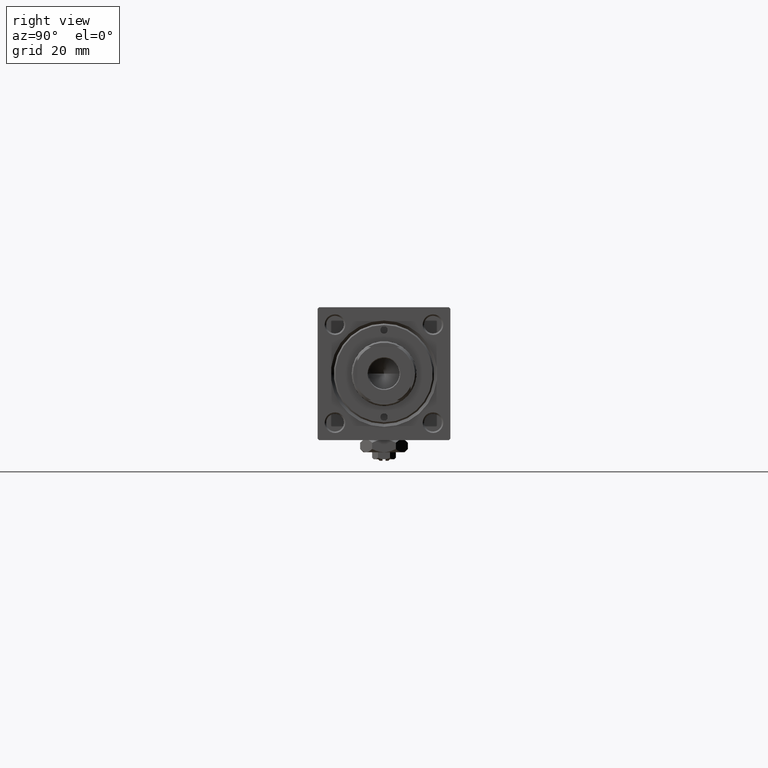
[diagram: clean part render]
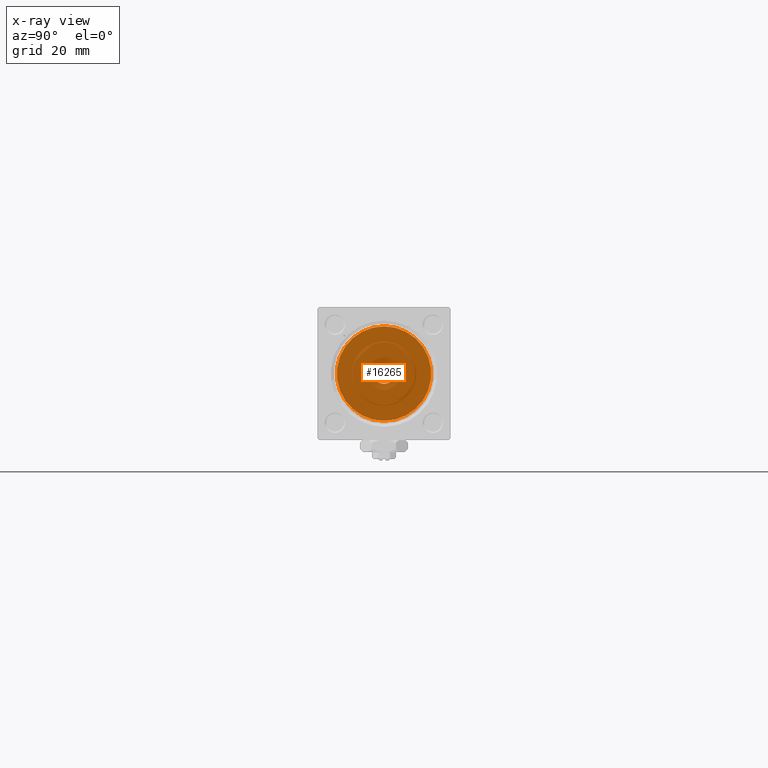
[diagram: x-ray — body ghosted, one internal face saturated and labeled with its STEP entity id]
A machine part, right view, then the same camera in x-ray: the body is ghosted and one INTERNAL B-rep face — a face not visible from any outside direction — is saturated and labeled: STEP entity #16265.
In plain terms, the highlighted planar face has unit normal (-1, 0, 0).
Its self-contained STEP definition (entity closure, byte-faithful):
#7 = DIRECTION ( 'NONE',  ( -1.000000000000000000, 0.000000000000000000, -0.000000000000000000 ) ) ;
#1093 = CIRCLE ( 'NONE', #31374, 3.500000000000000000 ) ;
#2374 = CARTESIAN_POINT ( 'NONE',  ( 25.00000000000000000, -2.602085213965210642E-15, 16.00000000000000000 ) ) ;
#4011 = AXIS2_PLACEMENT_3D ( 'NONE', #28978, #7, #11931 ) ;
#5215 = DIRECTION ( 'NONE',  ( -1.000000000000000000, 0.000000000000000000, -0.000000000000000000 ) ) ;
#8022 = ORIENTED_EDGE ( 'NONE', *, *, #21030, .T. ) ;
#9015 = DIRECTION ( 'NONE',  ( 0.000000000000000000, 0.000000000000000000, 1.000000000000000000 ) ) ;
#9909 = AXIS2_PLACEMENT_3D ( 'NONE', #34476, #5215, #9015 ) ;
#10006 = DIRECTION ( 'NONE',  ( 1.000000000000000000, 0.000000000000000000, 0.000000000000000000 ) ) ;
#11931 = DIRECTION ( 'NONE',  ( -0.000000000000000000, 0.000000000000000000, 1.000000000000000000 ) ) ;
#11955 = ORIENTED_EDGE ( 'NONE', *, *, #41041, .T. ) ;
#15994 = FACE_OUTER_BOUND ( 'NONE', #52033, .T. ) ;
#16265 = ADVANCED_FACE ( 'NONE', ( #31993, #15994 ), #37111, .F. ) ;
#16372 = VERTEX_POINT ( 'NONE', #49789 ) ;
#18639 = VERTEX_POINT ( 'NONE', #29258 ) ;
#21030 = EDGE_CURVE ( 'NONE', #52644, #42123, #45544, .T. ) ;
#24903 = CARTESIAN_POINT ( 'NONE',  ( 24.99999999999999289, 0.000000000000000000, 0.000000000000000000 ) ) ;
#26532 = DIRECTION ( 'NONE',  ( 0.000000000000000000, 0.000000000000000000, -1.000000000000000000 ) ) ;
#27988 = CARTESIAN_POINT ( 'NONE',  ( 25.00000000000000000, -2.602085213965210642E-15, 0.000000000000000000 ) ) ;
#28978 = CARTESIAN_POINT ( 'NONE',  ( 25.00000000000000000, 0.000000000000000000, 0.000000000000000000 ) ) ;
#29258 = CARTESIAN_POINT ( 'NONE',  ( 24.99999999999999289, 0.000000000000000000, 3.500000000000000000 ) ) ;
#31374 = AXIS2_PLACEMENT_3D ( 'NONE', #24903, #33565, #45726 ) ;
#31993 = FACE_BOUND ( 'NONE', #37575, .T. ) ;
#33255 = CIRCLE ( 'NONE', #9909, 3.500000000000000000 ) ;
#33565 = DIRECTION ( 'NONE',  ( -1.000000000000000000, 0.000000000000000000, -0.000000000000000000 ) ) ;
#34476 = CARTESIAN_POINT ( 'NONE',  ( 24.99999999999999289, 0.000000000000000000, 0.000000000000000000 ) ) ;
#36078 = ORIENTED_EDGE ( 'NONE', *, *, #47006, .T. ) ;
#37111 = PLANE ( 'NONE',  #4011 ) ;
#37251 = ORIENTED_EDGE ( 'NONE', *, *, #39680, .T. ) ;
#37575 = EDGE_LOOP ( 'NONE', ( #36078, #37251 ) ) ;
#39680 = EDGE_CURVE ( 'NONE', #16372, #18639, #1093, .T. ) ;
#40918 = CIRCLE ( 'NONE', #47800, 16.00000000000000000 ) ;
#41041 = EDGE_CURVE ( 'NONE', #42123, #52644, #40918, .T. ) ;
#42123 = VERTEX_POINT ( 'NONE', #49667 ) ;
#43294 = CARTESIAN_POINT ( 'NONE',  ( 25.00000000000000000, -2.602085213965210642E-15, 0.000000000000000000 ) ) ;
#43840 = AXIS2_PLACEMENT_3D ( 'NONE', #27988, #45030, #44493 ) ;
#44493 = DIRECTION ( 'NONE',  ( 0.000000000000000000, 0.000000000000000000, -1.000000000000000000 ) ) ;
#45030 = DIRECTION ( 'NONE',  ( 1.000000000000000000, 0.000000000000000000, 0.000000000000000000 ) ) ;
#45544 = CIRCLE ( 'NONE', #43840, 16.00000000000000000 ) ;
#45726 = DIRECTION ( 'NONE',  ( 0.000000000000000000, 0.000000000000000000, 1.000000000000000000 ) ) ;
#47006 = EDGE_CURVE ( 'NONE', #18639, #16372, #33255, .T. ) ;
#47800 = AXIS2_PLACEMENT_3D ( 'NONE', #43294, #10006, #26532 ) ;
#49667 = CARTESIAN_POINT ( 'NONE',  ( 25.00000000000000000, -6.426503353294456087E-16, -16.00000000000000000 ) ) ;
#49789 = CARTESIAN_POINT ( 'NONE',  ( 24.99999999999999289, 4.286263797015736595E-16, -3.500000000000000000 ) ) ;
#52033 = EDGE_LOOP ( 'NONE', ( #8022, #11955 ) ) ;
#52644 = VERTEX_POINT ( 'NONE', #2374 ) ;